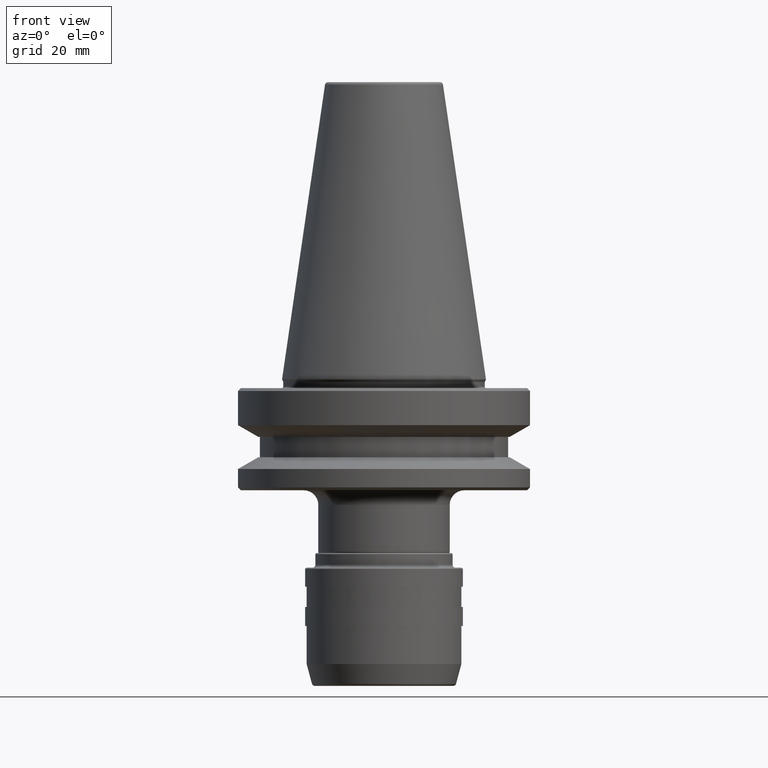
[diagram: clean part render]
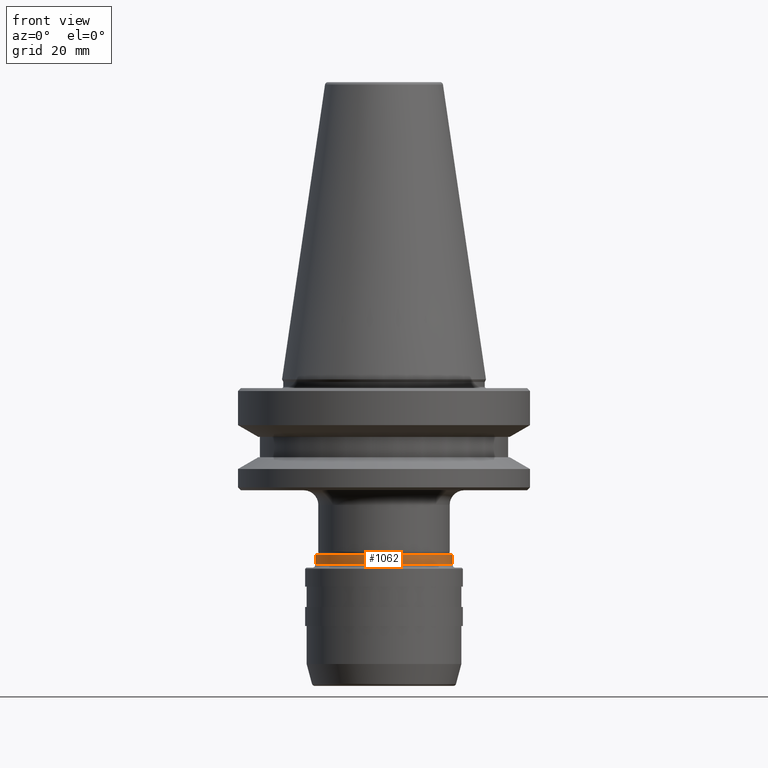
[diagram: same view with one face highlighted and labeled with its STEP entity id]
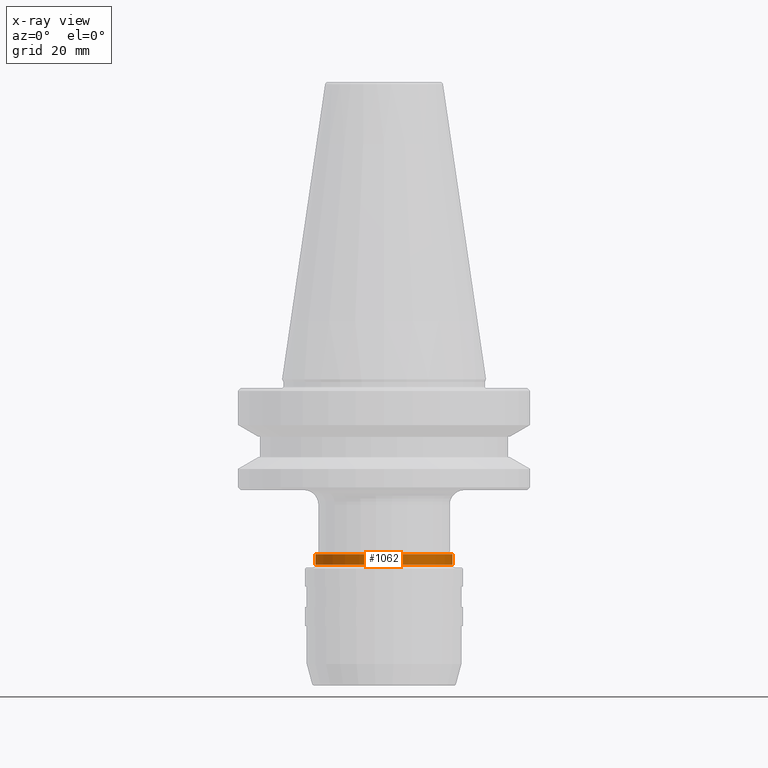
[diagram: x-ray of the same camera — body ghosted, the highlighted face saturated]
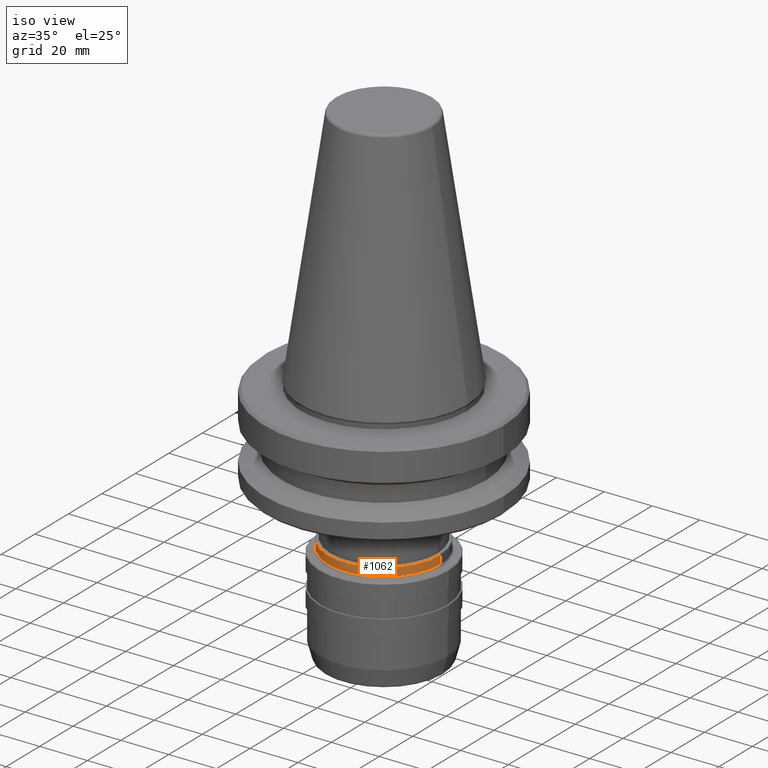
[diagram: same view with one face highlighted and labeled with its STEP entity id]
A machine part, front view. The second image highlights one B-rep face of the part: STEP entity #1062.
The next image is the same camera in x-ray: the body ghosted, the highlighted face saturated — about 0% of this face is hidden behind the body in this view.
A second angle (iso view) of the same face is appended — the face is thin or edge-on in the first view.
In plain terms, the highlighted cylindrical surface (partial cylindrical patch) has radius 23.5 mm, axis along (-0, -0, 1).
Its self-contained STEP definition (entity closure, byte-faithful):
#16 = CYLINDRICAL_SURFACE ( 'NONE', #1145, 23.49999999999991100 ) ;
#59 = VECTOR ( 'NONE', #1110, 1000.000000000000000 ) ;
#101 = FACE_OUTER_BOUND ( 'NONE', #230, .T. ) ;
#136 = ORIENTED_EDGE ( 'NONE', *, *, #1228, .T. ) ;
#170 = VERTEX_POINT ( 'NONE', #1143 ) ;
#230 = EDGE_LOOP ( 'NONE', ( #505, #136, #1556, #871 ) ) ;
#233 = DIRECTION ( 'NONE',  ( 1.000000000000000000, 0.0000000000000000000, 0.0000000000000000000 ) ) ;
#373 = CIRCLE ( 'NONE', #1188, 23.50000000000007800 ) ;
#401 = CARTESIAN_POINT ( 'NONE',  ( 0.0000000000000000000, 0.0000000000000000000, -63.50000000000122200 ) ) ;
#437 = VERTEX_POINT ( 'NONE', #1247 ) ;
#505 = ORIENTED_EDGE ( 'NONE', *, *, #1055, .F. ) ;
#520 = DIRECTION ( 'NONE',  ( 1.000000000000000000, 0.0000000000000000000, 0.0000000000000000000 ) ) ;
#559 = EDGE_CURVE ( 'NONE', #170, #1472, #373, .T. ) ;
#605 = DIRECTION ( 'NONE',  ( -0.0000000000000000000, -0.0000000000000000000, 1.000000000000000000 ) ) ;
#704 = CARTESIAN_POINT ( 'NONE',  ( 23.49999999999996400, 0.0000000000000000000, -60.00000000000138600 ) ) ;
#712 = DIRECTION ( 'NONE',  ( -0.0000000000000000000, -0.0000000000000000000, 1.000000000000000000 ) ) ;
#815 = DIRECTION ( 'NONE',  ( -0.0000000000000000000, -0.0000000000000000000, 1.000000000000000000 ) ) ;
#824 = CARTESIAN_POINT ( 'NONE',  ( 23.49999999999974400, 0.0000000000000000000, -63.50000000000122200 ) ) ;
#871 = ORIENTED_EDGE ( 'NONE', *, *, #559, .F. ) ;
#950 = AXIS2_PLACEMENT_3D ( 'NONE', #401, #1295, #520 ) ;
#998 = CARTESIAN_POINT ( 'NONE',  ( -23.49999999999991100, 2.877919977996268900E-015, 131.3486644535753100 ) ) ;
#1008 = EDGE_CURVE ( 'NONE', #1445, #1472, #1144, .T. ) ;
#1055 = EDGE_CURVE ( 'NONE', #437, #170, #1369, .T. ) ;
#1062 = ADVANCED_FACE ( 'NONE', ( #101 ), #16, .T. ) ;
#1110 = DIRECTION ( 'NONE',  ( -0.0000000000000000000, -0.0000000000000000000, 1.000000000000000000 ) ) ;
#1120 = CARTESIAN_POINT ( 'NONE',  ( 0.0000000000000000000, 0.0000000000000000000, 131.3486644535753100 ) ) ;
#1143 = CARTESIAN_POINT ( 'NONE',  ( -23.49999999999996400, 2.877919977996276000E-015, -60.00000000000138600 ) ) ;
#1144 = LINE ( 'NONE', #1362, #1486 ) ;
#1145 = AXIS2_PLACEMENT_3D ( 'NONE', #1120, #605, #1383 ) ;
#1188 = AXIS2_PLACEMENT_3D ( 'NONE', #1655, #815, #233 ) ;
#1228 = EDGE_CURVE ( 'NONE', #437, #1445, #1487, .T. ) ;
#1247 = CARTESIAN_POINT ( 'NONE',  ( -23.49999999999974400, 2.939152317953616700E-015, -63.50000000000122200 ) ) ;
#1295 = DIRECTION ( 'NONE',  ( -0.0000000000000000000, -0.0000000000000000000, 1.000000000000000000 ) ) ;
#1362 = CARTESIAN_POINT ( 'NONE',  ( 23.49999999999991100, 0.0000000000000000000, 131.3486644535753100 ) ) ;
#1369 = LINE ( 'NONE', #998, #59 ) ;
#1383 = DIRECTION ( 'NONE',  ( 1.000000000000000000, 0.0000000000000000000, 0.0000000000000000000 ) ) ;
#1445 = VERTEX_POINT ( 'NONE', #824 ) ;
#1472 = VERTEX_POINT ( 'NONE', #704 ) ;
#1486 = VECTOR ( 'NONE', #712, 1000.000000000000000 ) ;
#1487 = CIRCLE ( 'NONE', #950, 23.49999999999974400 ) ;
#1556 = ORIENTED_EDGE ( 'NONE', *, *, #1008, .T. ) ;
#1655 = CARTESIAN_POINT ( 'NONE',  ( 0.0000000000000000000, 0.0000000000000000000, -60.00000000000138600 ) ) ;